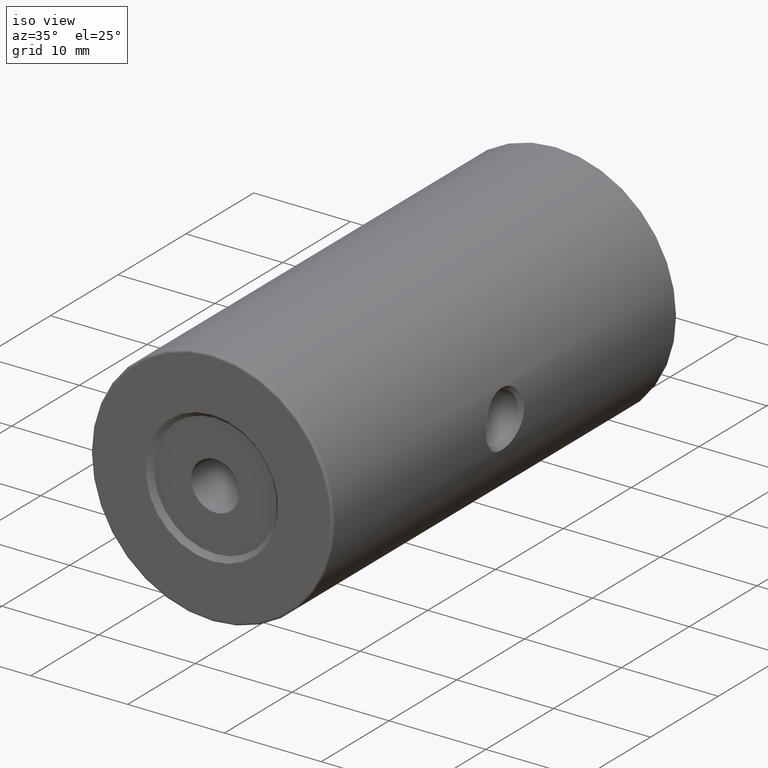
[diagram: clean part render]
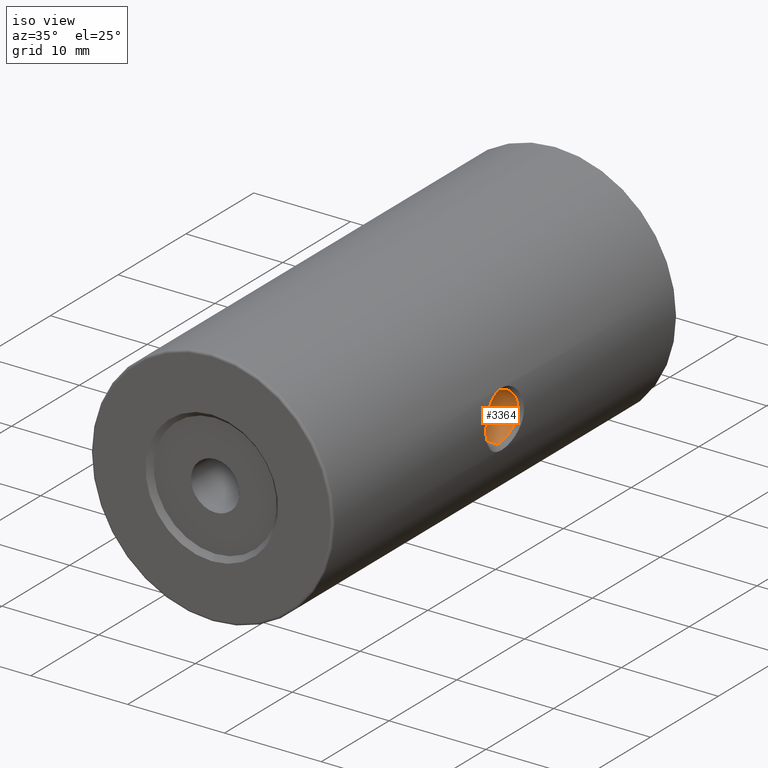
[diagram: same view with one face highlighted and labeled with its STEP entity id]
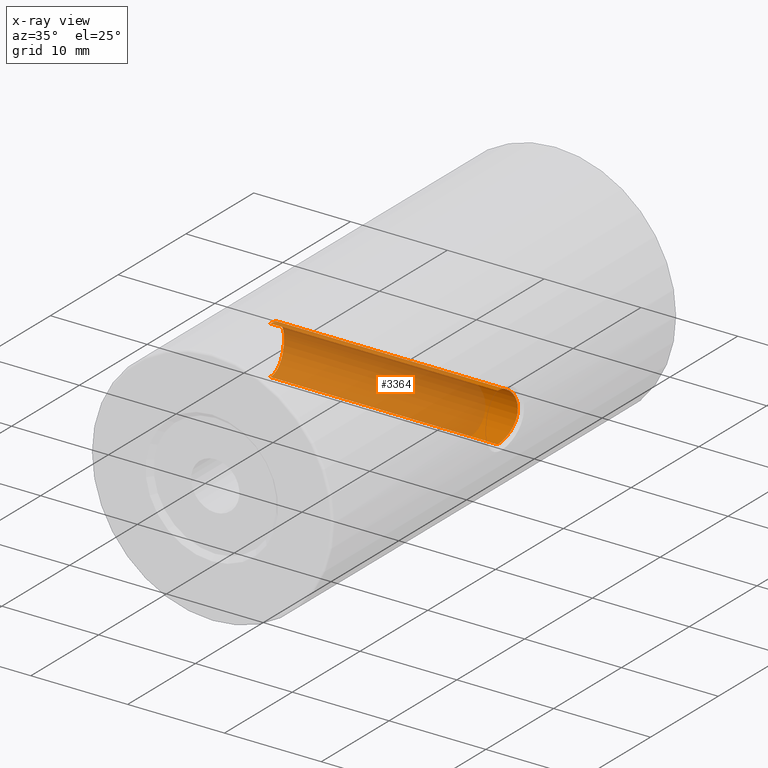
[diagram: x-ray of the same camera — body ghosted, the highlighted face saturated]
A machine part, iso view. The second image highlights one B-rep face of the part: STEP entity #3364.
The next image is the same camera in x-ray: the body ghosted, the highlighted face saturated — about 86% of this face is hidden behind the body in this view.
In plain terms, the highlighted cylindrical surface (edge-blend (fillet) strip) has radius 2.5 mm, axis along (1, -0, -0).
Its self-contained STEP definition (entity closure, byte-faithful):
#1 = CARTESIAN_POINT ( 'NONE',  ( -34.53799626503553100, 3.714705747844400552, 49.05955801840078578 ) ) ;
#10 = CARTESIAN_POINT ( 'NONE',  ( -34.34694435702544268, 2.724696208876177916, 52.11927320865969904 ) ) ;
#13 = CARTESIAN_POINT ( 'NONE',  ( -10.74055264803361887, 1.965160418878937776, 47.56477696204751027 ) ) ;
#27 = CARTESIAN_POINT ( 'NONE',  ( -34.27804580035403603, 2.086575151996424626, 52.40370738585265542 ) ) ;
#30 = CARTESIAN_POINT ( 'NONE',  ( -10.68788471832001719, 2.539433060992520197, 47.77555911953619017 ) ) ;
#45 = CARTESIAN_POINT ( 'NONE',  ( -34.56256781749716822, 3.813732364785566098, 50.64996031648875885 ) ) ;
#48 = CARTESIAN_POINT ( 'NONE',  ( -10.56657809085380784, 3.290784664105088630, 51.63401304753421073 ) ) ;
#57 = ORIENTED_EDGE ( 'NONE', *, *, #2527, .T. ) ;
#66 = CARTESIAN_POINT ( 'NONE',  ( -10.43458761997465523, 3.865409358441089793, 50.40600943151760305 ) ) ;
#70 = CARTESIAN_POINT ( 'NONE',  ( -34.33858617189392959, 2.664240156316155961, 47.84414879115580987 ) ) ;
#80 = CARTESIAN_POINT ( 'NONE',  ( -34.50880725685789230, 3.591694377612402178, 51.19969144280758400 ) ) ;
#85 = CARTESIAN_POINT ( 'NONE',  ( -10.50766408937950658, 3.565365691942252724, 51.24710472444194664 ) ) ;
#103 = CARTESIAN_POINT ( 'NONE',  ( -10.42602248527153641, 3.898315734512936004, 50.07909685301757463 ) ) ;
#106 = CARTESIAN_POINT ( 'NONE',  ( -34.47835700621472199, 3.455955106656807718, 48.57972021482910918 ) ) ;
#114 = CARTESIAN_POINT ( 'NONE',  ( -34.53991951118978676, 3.722633376748722078, 50.92141146752413050 ) ) ;
#120 = CARTESIAN_POINT ( 'NONE',  ( -10.49003806496750713, 3.641181918051476174, 51.10440038296660248 ) ) ;
#125 = CARTESIAN_POINT ( 'NONE',  ( -34.30394296115252217, 2.375711128245953763, 47.69891051549695504 ) ) ;
#161 = CARTESIAN_POINT ( 'NONE',  ( -10.62237732879239260, 2.988748929443698188, 51.92881521574157233 ) ) ;
#179 = VERTEX_POINT ( 'NONE', #855 ) ;
#195 = CARTESIAN_POINT ( 'NONE',  ( -10.65923473107763186, 2.754486190467121620, 52.10060455302398452 ) ) ;
#226 = CARTESIAN_POINT ( 'NONE',  ( -34.35488893522519760, 2.779496485271359951, 52.08380567107194281 ) ) ;
#229 = CARTESIAN_POINT ( 'NONE',  ( -10.53966556759820605, 3.420558592520987151, 48.53006894743834465 ) ) ;
#241 = CARTESIAN_POINT ( 'NONE',  ( -34.47793529354721898, 3.453928640690001384, 51.42277278292520748 ) ) ;
#244 = CARTESIAN_POINT ( 'NONE',  ( -10.56391064301698179, 3.303839945643887166, 48.38172606724518232 ) ) ;
#250 = EDGE_LOOP ( 'NONE', ( #2771, #57, #2067, #2165, #302, #843 ) ) ;
#255 = CARTESIAN_POINT ( 'NONE',  ( -34.34325654698270824, 2.698307815750786265, 52.13547844895588668 ) ) ;
#258 = CARTESIAN_POINT ( 'NONE',  ( -10.62827805860839625, 2.953539933338767742, 48.04262997200446961 ) ) ;
#263 = CARTESIAN_POINT ( 'NONE',  ( -34.54901993731348142, 3.759636630981269878, 49.17730288338822930 ) ) ;
#273 = CARTESIAN_POINT ( 'NONE',  ( -34.32523023667661022, 2.561403185856742759, 52.21301639183822374 ) ) ;
#277 = CARTESIAN_POINT ( 'NONE',  ( -10.74912821629455806, 1.806382460940008539, 47.53221428566036622 ) ) ;
#291 = CARTESIAN_POINT ( 'NONE',  ( -34.39480158165835633, 3.028510403437080445, 51.89576953583296159 ) ) ;
#294 = CARTESIAN_POINT ( 'NONE',  ( -10.69883739644757448, 2.446902964218242271, 47.72992432399926344 ) ) ;
#302 = ORIENTED_EDGE ( 'NONE', *, *, #2511, .T. ) ;
#310 = CARTESIAN_POINT ( 'NONE',  ( -10.46658545540535457, 3.738506329211958690, 50.87957062682780673 ) ) ;
#326 = CARTESIAN_POINT ( 'NONE',  ( -10.61255753572120319, 3.045764872686388181, 51.88045600329560614 ) ) ;
#329 = CARTESIAN_POINT ( 'NONE',  ( -34.26995450285942724, 1.966833508833786492, 47.56517006759014521 ) ) ;
#342 = B_SPLINE_CURVE_WITH_KNOTS ( 'NONE', 3,
 ( #1839, #2959, #2908, #517, #1576, #1310, #2372, #1593, #1048, #1854, #2657, #2110, #263, #1327, #2388, #1, #1063, #2125, #3198, #1867, #2676, #1343, #3287, #1436, #2500, #2802, #929, #913, #106, #3046, #1475, #2540, #653, #3012, #1112, #2194, #3265, #2252, #1167, #2235, #1715, #2176, #2785, #1696, #392, #2766, #3065, #1661, #895, #3303, #3031, #2461, #1456, #1956, #3322, #1991, #637, #673, #3248, #2520, #370, #70, #1734, #1918, #856, #411, #875, #2993, #1131, #125, #1971, #1187, #1938, #620, #601, #2727, #329, #1399, #1680, #2746, #350 ),
 .UNSPECIFIED., .F., .F.,
 ( 4, 2, 2, 2, 2, 2, 1, 2, 2, 1, 2, 2, 2, 1, 2, 2, 2, 1, 1, 2, 2, 2, 2, 2, 2, 2, 1, 1, 2, 2, 2, 1, 2, 2, 2, 2, 2, 1, 2, 2, 2, 2, 2, 2, 4 ),
 ( 0.5000000000000000000, 0.5156264305114712787, 0.5234396457672069181, 0.5312528610229424464, 0.5390660762786780857, 0.5468792915344137251, 0.5546925067901493644, 0.5585991144180171286, 0.5625057220458848928, 0.5703189373016201991, 0.5742255449294879632, 0.5781321525573557274, 0.5859453678130911447, 0.5898519754409589089, 0.5918052792548921248, 0.5937585830688254518, 0.6015717983245586487, 0.6054784059524253026, 0.6074317097663581855, 0.6084083616733246824, 0.6093850135802910684, 0.6171982288360284841, 0.6211048364638973585, 0.6250114440917661218, 0.6328246593475032045, 0.6367312669753713017, 0.6386845707893054058, 0.6396612226962730130, 0.6401495486497568166, 0.6406378746032406202, 0.6484510898589777028, 0.6523576974868462441, 0.6543110013007806813, 0.6562643051147150075, 0.6640775203704545326, 0.6679841279983245173, 0.6718907356261945019, 0.6797039508819345821, 0.6836105585098046777, 0.6875171661376747734, 0.6953303813934147426, 0.7031435966491548228, 0.7109568119048947921, 0.7187700271606347613, 0.7500228881835950823 ),
 .UNSPECIFIED. ) ;
#347 = CARTESIAN_POINT ( 'NONE',  ( -10.49693029463215055, 3.611794956655857369, 51.16215062623718524 ) ) ;
#350 = CARTESIAN_POINT ( 'NONE',  ( -34.25265054498071038, 1.398252184769378959, 47.49999999999539568 ) ) ;
#359 = CARTESIAN_POINT ( 'NONE',  ( -35.00520183104453764, 1.398252184769388728, 52.50000000000000711 ) ) ;
#366 = CARTESIAN_POINT ( 'NONE',  ( -10.48362473781051385, 3.668293309278440884, 51.04873908158454299 ) ) ;
#370 = CARTESIAN_POINT ( 'NONE',  ( -34.34582147389722451, 2.716998224141196072, 47.87571452042210751 ) ) ;
#388 = CARTESIAN_POINT ( 'NONE',  ( -10.58680048196469592, 3.187015570641649642, 51.74674765687397127 ) ) ;
#392 = CARTESIAN_POINT ( 'NONE',  ( -34.39761001984179956, 3.044417718302857345, 48.11836436365982195 ) ) ;
#401 = DIRECTION ( 'NONE',  ( 1.000000000000000000, -0.0000000000000000000, -0.0000000000000000000 ) ) ;
#408 = CARTESIAN_POINT ( 'NONE',  ( -10.65249293293446087, 2.799858131135670281, 52.07017394353964335 ) ) ;
#411 = CARTESIAN_POINT ( 'NONE',  ( -34.32261253376181287, 2.540665696759427217, 47.77588027151615080 ) ) ;
#461 = CARTESIAN_POINT ( 'NONE',  ( -10.75770789460023380, 1.563061693738620583, 52.49983513836786386 ) ) ;
#492 = CARTESIAN_POINT ( 'NONE',  ( -34.43271705916691161, 3.234563489872000375, 51.69693926536846362 ) ) ;
#510 = CARTESIAN_POINT ( 'NONE',  ( -34.46296856650761953, 3.383991984260283470, 51.51937197563789539 ) ) ;
#513 = CARTESIAN_POINT ( 'NONE',  ( -10.56979142705477592, 3.274545867982725067, 48.34774838025769128 ) ) ;
#517 = CARTESIAN_POINT ( 'NONE',  ( -34.58023691177783832, 3.882480711091273129, 49.71662314756471801 ) ) ;
#526 = CARTESIAN_POINT ( 'NONE',  ( -34.38425514538157302, 2.966316391726322887, 51.94710199268654094 ) ) ;
#542 = CARTESIAN_POINT ( 'NONE',  ( -34.45748932519092023, 3.357772379161701348, 51.55315505964590983 ) ) ;
#545 = CARTESIAN_POINT ( 'NONE',  ( -10.57782312020690973, 3.233863439441449383, 48.30230010774853611 ) ) ;
#562 = CARTESIAN_POINT ( 'NONE',  ( -34.38671495544637935, 2.980983265076709188, 51.93519311268136107 ) ) ;
#565 = CARTESIAN_POINT ( 'NONE',  ( -10.63324832098977879, 2.923347842215427761, 48.01886132538812291 ) ) ;
#581 = CARTESIAN_POINT ( 'NONE',  ( -10.71611989040693480, 2.278727290038973674, 47.66008678486235794 ) ) ;
#597 = CARTESIAN_POINT ( 'NONE',  ( -10.55531889801301659, 3.345944087751461016, 51.56733120439854190 ) ) ;
#601 = CARTESIAN_POINT ( 'NONE',  ( -34.27801529104964118, 2.086261137797316145, 47.59617280641642623 ) ) ;
#611 = CARTESIAN_POINT ( 'NONE',  ( -35.00520183104453764, 1.398252184769388506, 47.50000000000000000 ) ) ;
#612 = CARTESIAN_POINT ( 'NONE',  ( -10.75775277531307239, 1.400772240898691123, 52.49999872986310834 ) ) ;
#617 = CARTESIAN_POINT ( 'NONE',  ( -10.62128130365141310, 2.995209600827943408, 51.92347243009047730 ) ) ;
#620 = CARTESIAN_POINT ( 'NONE',  ( -34.28425718425108926, 2.166107220717877979, 47.62047480790241849 ) ) ;
#634 = CARTESIAN_POINT ( 'NONE',  ( -10.44050617184146823, 3.842400022348096300, 50.52702085068084159 ) ) ;
#637 = CARTESIAN_POINT ( 'NONE',  ( -34.36086175259101338, 2.819442343495019099, 47.94322949625630059 ) ) ;
#645 = CARTESIAN_POINT ( 'NONE',  ( -34.58436337322496001, 3.898250868283255066, 50.00256562447481912 ) ) ;
#650 = CARTESIAN_POINT ( 'NONE',  ( -10.47640660499210519, 3.698224077249324893, 49.01991178301089036 ) ) ;
#653 = CARTESIAN_POINT ( 'NONE',  ( -34.45699076149875140, 3.355189985240459638, 48.44417053961399944 ) ) ;
#670 = CARTESIAN_POINT ( 'NONE',  ( -10.75338199212435342, 1.726486270556788272, 52.48392474899447535 ) ) ;
#673 = CARTESIAN_POINT ( 'NONE',  ( -34.35854923057267740, 2.804111315465720011, 47.93272002937037968 ) ) ;
#719 = CARTESIAN_POINT ( 'NONE',  ( -10.71220122382865014, 2.319907301226082463, 52.32428643417196668 ) ) ;
#733 = CARTESIAN_POINT ( 'NONE',  ( -10.62234100687278016, 2.988962205874692746, 51.92863791231235382 ) ) ;
#749 = CARTESIAN_POINT ( 'NONE',  ( -34.33157960056090729, 2.611711056593790214, 52.18608434738720803 ) ) ;
#764 = CARTESIAN_POINT ( 'NONE',  ( -34.30016066776102690, 2.338896842652554042, 52.31637011544891891 ) ) ;
#767 = CARTESIAN_POINT ( 'NONE',  ( -10.54743776130639077, 3.383981544169346822, 48.48060507579832290 ) ) ;
#781 = CARTESIAN_POINT ( 'NONE',  ( -34.50232215744769348, 3.563461913674122794, 51.24990526171338701 ) ) ;
#784 = CARTESIAN_POINT ( 'NONE',  ( -10.66726304063190867, 2.697473259859916261, 47.86401275867633842 ) ) ;
#796 = CARTESIAN_POINT ( 'NONE',  ( -34.36529390645667092, 2.848719826973262759, 52.03661785203726708 ) ) ;
#800 = CARTESIAN_POINT ( 'NONE',  ( -10.58398987589730922, 3.202030749085214456, 48.26819460364748693 ) ) ;
#815 = CARTESIAN_POINT ( 'NONE',  ( -34.31168622883780728, 2.447977223187019824, 52.26958429966916952 ) ) ;
#818 = CARTESIAN_POINT ( 'NONE',  ( -10.66355808636980917, 2.724000046125462760, 47.88028934359981292 ) ) ;
#835 = CARTESIAN_POINT ( 'NONE',  ( -10.73534138326078669, 2.045066429621571036, 47.58477174512798058 ) ) ;
#843 = ORIENTED_EDGE ( 'NONE', *, *, #3131, .T. ) ;
#849 = CARTESIAN_POINT ( 'NONE',  ( -34.51577102830133725, 3.621698728318141214, 51.14371251332659796 ) ) ;
#852 = CARTESIAN_POINT ( 'NONE',  ( -10.59807076732466413, 3.126980561815674076, 51.80684960860677535 ) ) ;
#855 = CARTESIAN_POINT ( 'NONE',  ( -34.25265052839080937, 1.398252184769062545, 52.50000002275201183 ) ) ;
#856 = CARTESIAN_POINT ( 'NONE',  ( -34.32972789658966661, 2.597037757402532065, 47.80606120171989204 ) ) ;
#870 = CARTESIAN_POINT ( 'NONE',  ( -10.44277018626292985, 3.833558039630819536, 50.56652604515083738 ) ) ;
#875 = CARTESIAN_POINT ( 'NONE',  ( -34.31588000980587339, 2.484643514921128116, 47.74774139938863016 ) ) ;
#887 = EDGE_CURVE ( 'NONE', #179, #1632, #1964, .T. ) ;
#892 = CARTESIAN_POINT ( 'NONE',  ( -10.47228985999483264, 3.715187967734361774, 50.93925226526976502 ) ) ;
#895 = CARTESIAN_POINT ( 'NONE',  ( -34.38884296427712428, 2.993564852399764664, 48.07516311288792110 ) ) ;
#905 = CARTESIAN_POINT ( 'NONE',  ( -34.53407786932830703, 3.698557997503573613, 50.97930073135344742 ) ) ;
#910 = CARTESIAN_POINT ( 'NONE',  ( -10.47777082684039129, 3.692608870424224587, 50.99371643831760537 ) ) ;
#912 = EDGE_CURVE ( 'NONE', #2981, #3068, #1910, .T. ) ;
#913 = CARTESIAN_POINT ( 'NONE',  ( -34.48392976939013010, 3.481356259995909141, 48.61769724347142585 ) ) ;
#926 = CARTESIAN_POINT ( 'NONE',  ( -10.46126713321951307, 3.760105976178244269, 50.82135131906538561 ) ) ;
#929 = CARTESIAN_POINT ( 'NONE',  ( -34.48542199940442998, 3.488133907613046869, 48.62795515746079644 ) ) ;
#933 = AXIS2_PLACEMENT_3D ( 'NONE', #3312, #401, #3168 ) ;
#945 = CARTESIAN_POINT ( 'NONE',  ( -10.74262275664329636, 1.930177161233113559, 52.44310909606444682 ) ) ;
#962 = CARTESIAN_POINT ( 'NONE',  ( -10.70046203536048601, 2.431367238257860830, 52.27663631734336747 ) ) ;
#1008 = CARTESIAN_POINT ( 'NONE',  ( -10.65159541338158355, 2.805837286584396573, 52.06610518278511535 ) ) ;
#1024 = CARTESIAN_POINT ( 'NONE',  ( -34.37712870117411512, 2.923183177182456571, 51.98126396665610827 ) ) ;
#1028 = CARTESIAN_POINT ( 'NONE',  ( -10.70476268514651252, 2.392250165626466085, 47.70577093960275761 ) ) ;
#1032 = FACE_OUTER_BOUND ( 'NONE', #250, .T. ) ;
#1041 = CARTESIAN_POINT ( 'NONE',  ( -34.49285213743692680, 3.521659789373804195, 51.32016033927564536 ) ) ;
#1048 = CARTESIAN_POINT ( 'NONE',  ( -34.56758654008904585, 3.833374463698392631, 49.43267290171542783 ) ) ;
#1057 = CARTESIAN_POINT ( 'NONE',  ( -34.26991302517360793, 1.966150412365516242, 52.43498634185590390 ) ) ;
#1060 = CARTESIAN_POINT ( 'NONE',  ( -10.59445844981638807, 3.146199053620454045, 48.21243923078012017 ) ) ;
#1063 = CARTESIAN_POINT ( 'NONE',  ( -34.53249561006187918, 3.692039406713308214, 49.00496577797770215 ) ) ;
#1071 = CARTESIAN_POINT ( 'NONE',  ( -34.38208088999046197, 2.953269912498012850, 51.95758413938997933 ) ) ;
#1074 = CARTESIAN_POINT ( 'NONE',  ( -10.62388814465178299, 2.979798253938940267, 48.06383882973941013 ) ) ;
#1089 = CARTESIAN_POINT ( 'NONE',  ( -34.28401376549511070, 2.163067110284655925, 52.38047386747341960 ) ) ;
#1093 = CARTESIAN_POINT ( 'NONE',  ( -10.65969737157873887, 2.750831973513066409, 47.89746761160433408 ) ) ;
#1109 = CARTESIAN_POINT ( 'NONE',  ( -10.57756216025037332, 3.235068673070344403, 51.69607022926035000 ) ) ;
#1112 = CARTESIAN_POINT ( 'NONE',  ( -34.45342034665502240, 3.337851177784902923, 48.42266475108254298 ) ) ;
#1128 = CARTESIAN_POINT ( 'NONE',  ( -10.61497147234012672, 3.031921984396706016, 51.89245589269316383 ) ) ;
#1131 = CARTESIAN_POINT ( 'NONE',  ( -34.30574384668300070, 2.392730145329323932, 47.70622247540590166 ) ) ;
#1141 = CARTESIAN_POINT ( 'NONE',  ( -34.54356796060021395, 3.737516586821014286, 50.88289497874463052 ) ) ;
#1146 = CARTESIAN_POINT ( 'NONE',  ( -10.62192216117861143, 2.991433434158930371, 51.92659701926661597 ) ) ;
#1158 = CARTESIAN_POINT ( 'NONE',  ( -34.55037290242658088, 3.765055916444608908, 50.80616473622126250 ) ) ;
#1164 = CARTESIAN_POINT ( 'NONE',  ( -10.43146499598197430, 3.877481800841713788, 50.32423554535376553 ) ) ;
#1167 = CARTESIAN_POINT ( 'NONE',  ( -34.43552205052251480, 3.248773439488270576, 48.31893139376359869 ) ) ;
#1172 = B_SPLINE_CURVE_WITH_KNOTS ( 'NONE', 3,
 ( #3424, #3440, #2654, #2139, #277, #1357, #13, #835, #2385, #2419, #1573, #581, #2107, #2689, #1028, #294, #2091, #30, #2622, #2402, #2905, #784, #818, #1093, #1851, #2369, #3181, #2921, #1339, #565, #258, #1864, #2122, #1074, #2158, #3195, #3164, #1324, #2936, #3456, #1060, #800, #545, #513, #2638, #244, #1624, #3229, #1899, #2973, #1607, #767, #229, #1292, #2672, #3211, #1307, #1882, #2354, #2955, #1836, #1914, #3285, #2742, #1451, #1693, #3010, #650, #3301, #1182, #3245, #1954, #3318, #2515, #1433, #3028, #103, #1986, #3062, #1164, #66, #2763, #634, #870, #1640, #2210, #2705, #926, #310, #2231, #892, #910, #366, #120, #2173, #347, #2494, #85, #2989, #1969, #2475, #2191, #1413, #3044, #1710, #3262, #2782, #1675, #597, #2248, #2439, #1374, #48, #1394, #1109, #1657, #388, #852, #2722, #326, #1128, #2456, #1932, #617, #1146, #733, #161, #1765, #2571, #1522, #2040, #2816, #1008, #408, #195, #2867, #2073, #3108, #3126, #3338, #2005, #2587, #962, #3405, #1471, #719, #2852, #1538, #1238, #1784, #2536, #2602, #945, #670, #461, #1253 ),
 .UNSPECIFIED., .F., .F.,
 ( 4, 2, 2, 2, 2, 1, 2, 2, 1, 2, 2, 2, 1, 2, 2, 2, 1, 1, 1, 2, 2, 2, 2, 2, 2, 2, 1, 2, 2, 2, 1, 2, 2, 2, 2, 2, 1, 2, 2, 2, 2, 2, 2, 2, 2, 2, 2, 2, 1, 2, 2, 1, 2, 2, 2, 1, 2, 2, 2, 1, 1, 2, 2, 2, 2, 2, 2, 2, 1, 1, 2, 2, 2, 1, 2, 2, 2, 2, 2, 1, 2, 2, 2, 2, 2, 2, 4 ),
 ( 0.0000000000000000000, 0.01562499999998245501, 0.03124999999996491001, 0.03906249999995613925, 0.04687499999994736155, 0.05468749999993859079, 0.05859374999993396949, 0.06249999999992934818, 0.07031249999992010558, 0.07421874999991547039, 0.07812499999991083521, 0.08593749999990221711, 0.08984374999989788724, 0.09179687499989604149, 0.09374999999989419575, 0.1015624999998877287, 0.1054687499998848699, 0.1074218749998834266, 0.1083984374998831074, 0.1088867187498829686, 0.1093749999998828160, 0.1171874999998934463, 0.1210937499998987615, 0.1249999999999040767, 0.1328124999999139855, 0.1367187499999189537, 0.1386718749999213685, 0.1396484374999218958, 0.1406249999999224509, 0.1484374999999267253, 0.1523437499999288347, 0.1542968749999299172, 0.1562499999999309996, 0.1640624999999363287, 0.1679687499999390210, 0.1718749999999417133, 0.1796874999999471256, 0.1835937499999504285, 0.1874999999999537037, 0.1953124999999591715, 0.2031249999999646394, 0.2187499999999743261, 0.2499999999999936717, 0.2656250000000033307, 0.2734375000000074940, 0.2812500000000116573, 0.2890625000000158207, 0.2968750000000199840, 0.3046875000000241474, 0.3085937500000262013, 0.3125000000000282552, 0.3203125000000311418, 0.3242187500000319744, 0.3281250000000328071, 0.3359375000000356937, 0.3398437500000365263, 0.3417968750000364153, 0.3437500000000363598, 0.3515625000000360267, 0.3554687500000353606, 0.3574218750000349720, 0.3583984375000347500, 0.3593750000000345834, 0.3671875000000300870, 0.3710937500000278666, 0.3750000000000255906, 0.3828125000000205946, 0.3867187500000180411, 0.3886718750000168199, 0.3896484375000162093, 0.3901367187500159872, 0.3906250000000157652, 0.3984375000000154321, 0.4023437500000153211, 0.4042968750000153211, 0.4062500000000152656, 0.4140625000000136002, 0.4179687500000131006, 0.4218750000000126010, 0.4296875000000116573, 0.4335937500000112133, 0.4375000000000107692, 0.4453125000000094369, 0.4531250000000081046, 0.4609375000000067724, 0.4687500000000054401, 0.5000000000000000000 ),
 .UNSPECIFIED. ) ;
#1182 = CARTESIAN_POINT ( 'NONE',  ( -10.46683874819188276, 3.737504584614672165, 49.11705898947067084 ) ) ;
#1187 = CARTESIAN_POINT ( 'NONE',  ( -34.29425908866706862, 2.279086920308458719, 47.65995889923475914 ) ) ;
#1238 = CARTESIAN_POINT ( 'NONE',  ( -10.72594683895940548, 2.168530309151548874, 52.37874403322788197 ) ) ;
#1252 = B_SPLINE_CURVE_WITH_KNOTS ( 'NONE', 3,
 ( #612, #2452, #2893, #2017, #2359 ),
 .UNSPECIFIED., .F., .F.,
 ( 4, 1, 4 ),
 ( 0.5000000000000000000, 0.5000808699275857139, 0.5001617398551714277 ),
 .UNSPECIFIED. ) ;
#1253 = CARTESIAN_POINT ( 'NONE',  ( -10.75775277531307239, 1.400772240898691123, 52.49999872986310834 ) ) ;
#1289 = CARTESIAN_POINT ( 'NONE',  ( -34.25694026224092426, 1.683161598307294948, 52.48405114420977924 ) ) ;
#1292 = CARTESIAN_POINT ( 'NONE',  ( -10.53590965403381219, 3.438070091909231962, 48.55438621986129277 ) ) ;
#1304 = CARTESIAN_POINT ( 'NONE',  ( -34.48024853828947300, 3.464553031652027659, 51.40729843794096610 ) ) ;
#1307 = CARTESIAN_POINT ( 'NONE',  ( -10.52907118884337123, 3.469515327561039975, 48.60000513657042376 ) ) ;
#1310 = CARTESIAN_POINT ( 'NONE',  ( -34.57580320139236818, 3.865360020683432207, 49.59368190424329015 ) ) ;
#1319 = CARTESIAN_POINT ( 'NONE',  ( -34.35078610549837919, 2.751384864681059028, 52.10217632155313794 ) ) ;
#1324 = CARTESIAN_POINT ( 'NONE',  ( -10.60750994316150297, 3.074333090331624607, 48.14496214669854623 ) ) ;
#1327 = CARTESIAN_POINT ( 'NONE',  ( -34.54369817821186217, 3.738018949567919247, 49.11913398801507924 ) ) ;
#1335 = CARTESIAN_POINT ( 'NONE',  ( -34.25264969898167067, 1.479168740011100214, 52.50000000000001421 ) ) ;
#1339 = CARTESIAN_POINT ( 'NONE',  ( -10.63729871190613885, 2.898126532838807279, 47.99980086166073079 ) ) ;
#1343 = CARTESIAN_POINT ( 'NONE',  ( -34.50695619508598355, 3.583718661796758909, 48.78542191975093800 ) ) ;
#1354 = CARTESIAN_POINT ( 'NONE',  ( -34.26149993960419238, 1.805777567663617855, 52.46690698300361078 ) ) ;
#1357 = CARTESIAN_POINT ( 'NONE',  ( -10.74289442880792933, 1.925329444754339647, 47.55585930733043654 ) ) ;
#1371 = CARTESIAN_POINT ( 'NONE',  ( -34.55337786558744284, 3.777108215742401853, 50.76993000472031525 ) ) ;
#1374 = CARTESIAN_POINT ( 'NONE',  ( -10.56199101250251715, 3.313389350789485821, 51.60720248135837807 ) ) ;
#1394 = CARTESIAN_POINT ( 'NONE',  ( -10.57466531684339728, 3.249874824955048869, 51.67985506951195163 ) ) ;
#1399 = CARTESIAN_POINT ( 'NONE',  ( -34.26768233899846905, 1.928450702705048370, 47.55651474074507234 ) ) ;
#1413 = CARTESIAN_POINT ( 'NONE',  ( -10.52620299369526258, 3.482587794025575612, 51.38044518720528231 ) ) ;
#1433 = CARTESIAN_POINT ( 'NONE',  ( -10.43026627198259781, 3.882253059674794837, 49.67256777598775130 ) ) ;
#1436 = CARTESIAN_POINT ( 'NONE',  ( -34.49541331745723483, 3.532988666247074860, 48.69872623418265789 ) ) ;
#1451 = CARTESIAN_POINT ( 'NONE',  ( -10.48808776788148656, 3.649523439089907839, 48.91157680471115299 ) ) ;
#1456 = CARTESIAN_POINT ( 'NONE',  ( -34.38144323524218038, 2.949763338984734418, 48.03916816231713938 ) ) ;
#1471 = CARTESIAN_POINT ( 'NONE',  ( -10.70622746959254279, 2.377934762995611351, 52.30014367841698686 ) ) ;
#1475 = CARTESIAN_POINT ( 'NONE',  ( -34.46584608861534349, 3.397542947976256666, 48.49891677664061262 ) ) ;
#1506 = VERTEX_POINT ( 'NONE', #1924 ) ;
#1522 = CARTESIAN_POINT ( 'NONE',  ( -10.64199037483496113, 2.868482314852760950, 52.02208733020420084 ) ) ;
#1538 = CARTESIAN_POINT ( 'NONE',  ( -10.72288709385871996, 2.204594157728508641, 52.36674351380725767 ) ) ;
#1555 = CARTESIAN_POINT ( 'NONE',  ( -34.44318529400404572, 3.287420730537559788, 51.63748006458875750 ) ) ;
#1570 = CARTESIAN_POINT ( 'NONE',  ( -34.29431945050663444, 2.279110160737296553, 52.33977014953804741 ) ) ;
#1573 = CARTESIAN_POINT ( 'NONE',  ( -10.72153079176774959, 2.220792733292273002, 47.63856652003764935 ) ) ;
#1576 = CARTESIAN_POINT ( 'NONE',  ( -34.57893418754942871, 3.877465556899411858, 49.67562903271175401 ) ) ;
#1586 = CARTESIAN_POINT ( 'NONE',  ( -34.37309152292513659, 2.898042292598248526, 52.00026168201515731 ) ) ;
#1593 = CARTESIAN_POINT ( 'NONE',  ( -34.56986290510831594, 3.842265132169373487, 49.47234130247947803 ) ) ;
#1601 = CARTESIAN_POINT ( 'NONE',  ( -34.27508428324640022, 2.045357825997301759, 52.41514413048635390 ) ) ;
#1607 = CARTESIAN_POINT ( 'NONE',  ( -10.55296637921768976, 3.357524876382418810, 48.44652055320329254 ) ) ;
#1621 = CARTESIAN_POINT ( 'NONE',  ( -34.35338147968705158, 2.769239204486454220, 52.09057597998993572 ) ) ;
#1624 = CARTESIAN_POINT ( 'NONE',  ( -10.56228348234877856, 3.311881166526372322, 48.39123262895487443 ) ) ;
#1632 = VERTEX_POINT ( 'NONE', #3090 ) ;
#1640 = CARTESIAN_POINT ( 'NONE',  ( -10.44780453270753284, 3.813763724021211221, 50.64573242933733610 ) ) ;
#1657 = CARTESIAN_POINT ( 'NONE',  ( -10.58375804988519953, 3.202955632813256681, 51.73020071058130043 ) ) ;
#1661 = CARTESIAN_POINT ( 'NONE',  ( -34.39043951122707199, 3.002945015364635761, 48.08295802081725867 ) ) ;
#1675 = CARTESIAN_POINT ( 'NONE',  ( -10.55317987587206296, 3.356315340151343918, 51.55441317482761576 ) ) ;
#1680 = CARTESIAN_POINT ( 'NONE',  ( -34.25694543538440939, 1.724468045659705684, 47.51579507649224610 ) ) ;
#1689 = CARTESIAN_POINT ( 'NONE',  ( -34.53230527916870329, 3.691218907221982093, 50.99634521866104819 ) ) ;
#1693 = CARTESIAN_POINT ( 'NONE',  ( -10.48205551589994577, 3.674751804889546669, 48.96658403329121967 ) ) ;
#1696 = CARTESIAN_POINT ( 'NONE',  ( -34.40566408743829641, 3.090010173538130012, 48.15891080216286468 ) ) ;
#1710 = CARTESIAN_POINT ( 'NONE',  ( -10.53658929590089421, 3.435006155478295131, 51.45027489262303533 ) ) ;
#1715 = CARTESIAN_POINT ( 'NONE',  ( -34.42640494977918308, 3.201698727274083556, 48.26848832650870946 ) ) ;
#1718 = VECTOR ( 'NONE', #1948, 1000.000000000000000 ) ;
#1734 = CARTESIAN_POINT ( 'NONE',  ( -34.33624370790851543, 2.646806171045467337, 47.83401143121069055 ) ) ;
#1765 = CARTESIAN_POINT ( 'NONE',  ( -10.62866622019873475, 2.951544250995002283, 51.95942332555375032 ) ) ;
#1775 = VECTOR ( 'NONE', #3002, 1000.000000000000000 ) ;
#1784 = CARTESIAN_POINT ( 'NONE',  ( -10.73222477241632511, 2.088477423518467546, 52.40319385075625291 ) ) ;
#1816 = CARTESIAN_POINT ( 'NONE',  ( -34.40292642921738775, 3.074516548258740656, 51.85487433046746020 ) ) ;
#1833 = CARTESIAN_POINT ( 'NONE',  ( -34.30573236674659654, 2.393111125783168092, 52.29385858850991298 ) ) ;
#1836 = CARTESIAN_POINT ( 'NONE',  ( -10.50806148967661358, 3.563549575315525519, 48.75024839436874657 ) ) ;
#1839 = CARTESIAN_POINT ( 'NONE',  ( -34.58436337322496001, 3.898250868283255066, 50.00256562447481912 ) ) ;
#1848 = CARTESIAN_POINT ( 'NONE',  ( -34.36046448218377236, 2.817120072495870264, 52.05867049246618450 ) ) ;
#1851 = CARTESIAN_POINT ( 'NONE',  ( -10.65708894826713404, 2.768782829188122907, 47.90912451784429038 ) ) ;
#1854 = CARTESIAN_POINT ( 'NONE',  ( -34.56252324084479000, 3.813464430357043522, 49.35313806840424888 ) ) ;
#1861 = CARTESIAN_POINT ( 'NONE',  ( -34.45094144038518635, 3.325738783184532199, 51.59211394682439789 ) ) ;
#1864 = CARTESIAN_POINT ( 'NONE',  ( -10.62573172583964443, 2.968816210442351444, 48.05490762729003507 ) ) ;
#1867 = CARTESIAN_POINT ( 'NONE',  ( -34.51575700200050534, 3.621574355365511977, 48.85663851796233104 ) ) ;
#1878 = CARTESIAN_POINT ( 'NONE',  ( -34.38571617981018846, 2.975046749039664817, 51.94003877001235026 ) ) ;
#1882 = CARTESIAN_POINT ( 'NONE',  ( -10.52248213330368465, 3.499559375148185492, 48.64487119404684989 ) ) ;
#1896 = CARTESIAN_POINT ( 'NONE',  ( -34.52840305807859522, 3.674981101398176353, 51.03291123781769301 ) ) ;
#1899 = CARTESIAN_POINT ( 'NONE',  ( -10.55978731338635335, 3.324144027143437707, 48.40596271069683354 ) ) ;
#1910 = LINE ( 'NONE', #611, #1718 ) ;
#1914 = CARTESIAN_POINT ( 'NONE',  ( -10.50358629648381914, 3.583068483742239962, 48.78469361680836869 ) ) ;
#1918 = CARTESIAN_POINT ( 'NONE',  ( -34.33169738663571735, 2.612276421333474818, 47.81447061566154133 ) ) ;
#1924 = CARTESIAN_POINT ( 'NONE',  ( -34.58436337322496001, 3.898250868283255066, 50.00256562447481912 ) ) ;
#1932 = CARTESIAN_POINT ( 'NONE',  ( -10.61969784651965298, 3.004503414530076189, 51.91573604598304570 ) ) ;
#1938 = CARTESIAN_POINT ( 'NONE',  ( -34.28731963629584101, 2.202316232205207225, 47.63248163846107275 ) ) ;
#1948 = DIRECTION ( 'NONE',  ( 1.000000000000000000, -0.0000000000000000000, -0.0000000000000000000 ) ) ;
#1954 = CARTESIAN_POINT ( 'NONE',  ( -10.45693435473135224, 3.777473808923755172, 49.23120360238201698 ) ) ;
#1956 = CARTESIAN_POINT ( 'NONE',  ( -34.37590333120354558, 2.915794773451762190, 48.01286234897983718 ) ) ;
#1964 = LINE ( 'NONE', #359, #1775 ) ;
#1965 = CARTESIAN_POINT ( 'NONE',  ( -10.75775277531307239, 1.400772240898691123, 52.49999872986310834 ) ) ;
#1969 = CARTESIAN_POINT ( 'NONE',  ( -10.51837359180876952, 3.517933571144506555, 51.32579008385185659 ) ) ;
#1971 = CARTESIAN_POINT ( 'NONE',  ( -34.29798120410801232, 2.317666568573033992, 47.67482637243023191 ) ) ;
#1986 = CARTESIAN_POINT ( 'NONE',  ( -10.42705158325482451, 3.894432946984281330, 50.16070950309094201 ) ) ;
#1991 = CARTESIAN_POINT ( 'NONE',  ( -34.36439915011865054, 2.842708138849463495, 47.95936680337921132 ) ) ;
#2005 = CARTESIAN_POINT ( 'NONE',  ( -10.68758540392581047, 2.542342441976908951, 52.22325597180796564 ) ) ;
#2017 = CARTESIAN_POINT ( 'NONE',  ( -10.75775312484076451, 1.398672224646475559, 52.50000000000002132 ) ) ;
#2040 = CARTESIAN_POINT ( 'NONE',  ( -10.64573901249758947, 2.844430916668585496, 52.03941283699972331 ) ) ;
#2067 = ORIENTED_EDGE ( 'NONE', *, *, #2115, .T. ) ;
#2073 = CARTESIAN_POINT ( 'NONE',  ( -10.67160018275315636, 2.665846511305193012, 52.15490737904912066 ) ) ;
#2088 = CARTESIAN_POINT ( 'NONE',  ( -34.41613788109737015, 3.147235597115267680, 51.78654533551758732 ) ) ;
#2091 = CARTESIAN_POINT ( 'NONE',  ( -10.69234182700370006, 2.502332762322691639, 47.75691348780177492 ) ) ;
#2107 = CARTESIAN_POINT ( 'NONE',  ( -10.71238521261718013, 2.317432552051208905, 47.67501877044592362 ) ) ;
#2110 = CARTESIAN_POINT ( 'NONE',  ( -34.55377552792148776, 3.778695768193336857, 49.23508877299094877 ) ) ;
#2115 = EDGE_CURVE ( 'NONE', #1506, #2981, #342, .T. ) ;
#2120 = CARTESIAN_POINT ( 'NONE',  ( -34.31821333558747256, 2.503614424488722623, 52.24245597253286633 ) ) ;
#2122 = CARTESIAN_POINT ( 'NONE',  ( -10.62462732574344138, 2.975400541801093368, 48.06025488632067777 ) ) ;
#2125 = CARTESIAN_POINT ( 'NONE',  ( -34.52661855603397356, 3.667621899515267625, 48.94979994717805027 ) ) ;
#2135 = CARTESIAN_POINT ( 'NONE',  ( -34.25265052839080937, 1.398252184769062545, 52.50000002275201183 ) ) ;
#2139 = CARTESIAN_POINT ( 'NONE',  ( -10.75242780081259752, 1.722847840886586823, 47.51981399015355834 ) ) ;
#2154 = CARTESIAN_POINT ( 'NONE',  ( -34.56756822307149690, 3.833332788819902692, 50.57206592070092199 ) ) ;
#2158 = CARTESIAN_POINT ( 'NONE',  ( -10.62334915145951975, 2.982996198437783075, 48.06645691304564849 ) ) ;
#2165 = ORIENTED_EDGE ( 'NONE', *, *, #912, .T. ) ;
#2170 = CARTESIAN_POINT ( 'NONE',  ( -34.25265054498071038, 1.398252184769378959, 47.49999999999539568 ) ) ;
#2173 = CARTESIAN_POINT ( 'NONE',  ( -10.49443793111368883, 3.622465759713209277, 51.14162514310664420 ) ) ;
#2176 = CARTESIAN_POINT ( 'NONE',  ( -34.42332169522035201, 3.185531405758055268, 48.25173542516026970 ) ) ;
#2191 = CARTESIAN_POINT ( 'NONE',  ( -10.52471369896612785, 3.489348258755487375, 51.37019330986833410 ) ) ;
#2194 = CARTESIAN_POINT ( 'NONE',  ( -34.45244905414031678, 3.333112005385973298, 48.41686050232481620 ) ) ;
#2204 = CARTESIAN_POINT ( 'NONE',  ( -34.58011478712226250, 3.882168967637813495, 50.32812387780555241 ) ) ;
#2210 = CARTESIAN_POINT ( 'NONE',  ( -10.45068180355963783, 3.802385365944294104, 50.68683908687175688 ) ) ;
#2231 = CARTESIAN_POINT ( 'NONE',  ( -10.47025680275502424, 3.723524227971414913, 50.91844644550563714 ) ) ;
#2235 = CARTESIAN_POINT ( 'NONE',  ( -34.43261872431270376, 3.233925465667585986, 48.30269162704438202 ) ) ;
#2248 = CARTESIAN_POINT ( 'NONE',  ( -10.55675560199042629, 3.338960214666606419, 51.57597055680486164 ) ) ;
#2252 = CARTESIAN_POINT ( 'NONE',  ( -34.44362134598105740, 3.289767285727575263, 48.36480798833689931 ) ) ;
#2351 = CARTESIAN_POINT ( 'NONE',  ( -34.45068667023826947, 3.324488735351635693, 51.59362069245308646 ) ) ;
#2354 = CARTESIAN_POINT ( 'NONE',  ( -10.51747623928491748, 3.521995248718151839, 48.68038661749253748 ) ) ;
#2359 = CARTESIAN_POINT ( 'NONE',  ( -10.75775312123383642, 1.398252184769397388, 52.49999999860907707 ) ) ;
#2366 = CARTESIAN_POINT ( 'NONE',  ( -34.48118596962942917, 3.468845656451787551, 51.40098560065878530 ) ) ;
#2369 = CARTESIAN_POINT ( 'NONE',  ( -10.65554558621580661, 2.779286966446924190, 47.91605539503107991 ) ) ;
#2372 = CARTESIAN_POINT ( 'NONE',  ( -34.57390506594118307, 3.857997678078226578, 49.55136306853461292 ) ) ;
#2382 = CARTESIAN_POINT ( 'NONE',  ( -34.41236803619815987, 3.126786760425250389, 51.80631262430753026 ) ) ;
#2385 = CARTESIAN_POINT ( 'NONE',  ( -10.73230878014616607, 2.087230713268846571, 47.59648392039435549 ) ) ;
#2388 = CARTESIAN_POINT ( 'NONE',  ( -34.54002452358994901, 3.723024222460554089, 49.08028894891097593 ) ) ;
#2398 = CARTESIAN_POINT ( 'NONE',  ( -34.33608617813743535, 2.645985465630225075, 52.16675172971837071 ) ) ;
#2402 = CARTESIAN_POINT ( 'NONE',  ( -10.67898984605627000, 2.610437434572690396, 47.81320628337034151 ) ) ;
#2415 = CARTESIAN_POINT ( 'NONE',  ( -34.42657149361186697, 3.202853141354400357, 51.73094316416666061 ) ) ;
#2419 = CARTESIAN_POINT ( 'NONE',  ( -10.72636834715714294, 2.163316367278696362, 47.61960974747889708 ) ) ;
#2439 = CARTESIAN_POINT ( 'NONE',  ( -10.55773550570429364, 3.334181606824377475, 51.58183139332110301 ) ) ;
#2452 = CARTESIAN_POINT ( 'NONE',  ( -10.75775289145707347, 1.400352262137120052, 52.49999915321134125 ) ) ;
#2456 = CARTESIAN_POINT ( 'NONE',  ( -10.61818952971819563, 3.013288210498428654, 51.90833047861168126 ) ) ;
#2461 = CARTESIAN_POINT ( 'NONE',  ( -34.38771819878407143, 2.986927456131036163, 48.06968425288508229 ) ) ;
#2475 = CARTESIAN_POINT ( 'NONE',  ( -10.52215786200588887, 3.500899096592212434, 51.35240099868715191 ) ) ;
#2494 = CARTESIAN_POINT ( 'NONE',  ( -10.50321221870220079, 3.584739730790785117, 51.21273860960647539 ) ) ;
#2500 = CARTESIAN_POINT ( 'NONE',  ( -34.49177194385730161, 3.516779192418613587, 48.67236566844327683 ) ) ;
#2509 = CARTESIAN_POINT ( 'NONE',  ( -34.52236465314204139, 3.649729440711836137, 51.08800073522198204 ) ) ;
#2511 = EDGE_CURVE ( 'NONE', #3068, #2580, #1172, .T. ) ;
#2515 = CARTESIAN_POINT ( 'NONE',  ( -10.44278610239487648, 3.833526773281907385, 49.42876823398179198 ) ) ;
#2520 = CARTESIAN_POINT ( 'NONE',  ( -34.35092222196222167, 2.752779821162706586, 47.89829672656583170 ) ) ;
#2527 = EDGE_CURVE ( 'NONE', #179, #1506, #2892, .T. ) ;
#2536 = CARTESIAN_POINT ( 'NONE',  ( -10.73510165561819463, 2.048499619657598192, 52.41430491309149176 ) ) ;
#2540 = CARTESIAN_POINT ( 'NONE',  ( -34.46186240356232133, 3.378645102124779420, 48.47394285503791167 ) ) ;
#2571 = CARTESIAN_POINT ( 'NONE',  ( -10.63421686758943885, 2.917547560799804707, 51.98579877779243930 ) ) ;
#2580 = VERTEX_POINT ( 'NONE', #1965 ) ;
#2587 = CARTESIAN_POINT ( 'NONE',  ( -10.69431024340511804, 2.486468489921129343, 52.25137420493697249 ) ) ;
#2602 = CARTESIAN_POINT ( 'NONE',  ( -10.74033125496873886, 1.968770041060153408, 52.43437863028943724 ) ) ;
#2620 = CARTESIAN_POINT ( 'NONE',  ( -34.44820020496916868, 3.312275495771130007, 51.60829794776428514 ) ) ;
#2622 = CARTESIAN_POINT ( 'NONE',  ( -10.68536135105389739, 2.559892940764833646, 47.78618977467733941 ) ) ;
#2634 = CARTESIAN_POINT ( 'NONE',  ( -34.47067577738334876, 3.420266628268183062, 51.47033024460196771 ) ) ;
#2638 = CARTESIAN_POINT ( 'NONE',  ( -10.56731726940130400, 3.286927316641272245, 48.36195018709371851 ) ) ;
#2651 = CARTESIAN_POINT ( 'NONE',  ( -34.39043842415643581, 3.003052469193262741, 51.91709666612811702 ) ) ;
#2654 = CARTESIAN_POINT ( 'NONE',  ( -10.75668805386543347, 1.560100067682693714, 47.50390500056495569 ) ) ;
#2657 = CARTESIAN_POINT ( 'NONE',  ( -34.55961305451552334, 3.801953961258906389, 49.31165516725273790 ) ) ;
#2669 = CARTESIAN_POINT ( 'NONE',  ( -34.28887652143659892, 2.220855473628316812, 52.36141853907847121 ) ) ;
#2672 = CARTESIAN_POINT ( 'NONE',  ( -10.53234901540394475, 3.454478066915511292, 48.57802089523061539 ) ) ;
#2676 = CARTESIAN_POINT ( 'NONE',  ( -34.51324721833411502, 3.610824642208629864, 48.83600299425245339 ) ) ;
#2686 = CARTESIAN_POINT ( 'NONE',  ( -34.25372203042341113, 1.560659625647755178, 52.49606844197764843 ) ) ;
#2689 = CARTESIAN_POINT ( 'NONE',  ( -10.71030778668217209, 2.338251845969222309, 47.68336874345008169 ) ) ;
#2705 = CARTESIAN_POINT ( 'NONE',  ( -10.45651490754966773, 3.779148862535143039, 50.76350199337328206 ) ) ;
#2722 = CARTESIAN_POINT ( 'NONE',  ( -10.60451003076378917, 3.091284809329801764, 51.83991627007478087 ) ) ;
#2727 = CARTESIAN_POINT ( 'NONE',  ( -34.27515475477130025, 2.046380977584421501, 47.58512721043985749 ) ) ;
#2742 = CARTESIAN_POINT ( 'NONE',  ( -10.49467356482357339, 3.621523676002237124, 48.85594951957840948 ) ) ;
#2746 = CARTESIAN_POINT ( 'NONE',  ( -34.25265066272564241, 1.560402683586458394, 47.50000000000000711 ) ) ;
#2763 = CARTESIAN_POINT ( 'NONE',  ( -10.43648446060023716, 3.858052394336442870, 50.44832193567445700 ) ) ;
#2766 = CARTESIAN_POINT ( 'NONE',  ( -34.39518996575469600, 3.030528575511204359, 48.10634144076030339 ) ) ;
#2771 = ORIENTED_EDGE ( 'NONE', *, *, #887, .F. ) ;
#2782 = CARTESIAN_POINT ( 'NONE',  ( -10.54830106098588338, 3.379792021289607540, 51.52456859422592572 ) ) ;
#2785 = CARTESIAN_POINT ( 'NONE',  ( -34.41209200628295406, 3.125665187525341171, 48.19189920978420361 ) ) ;
#2802 = CARTESIAN_POINT ( 'NONE',  ( -34.48798181166461774, 3.499709095036621864, 48.64575056961265176 ) ) ;
#2816 = CARTESIAN_POINT ( 'NONE',  ( -10.64928047622001905, 2.821165976708219780, 52.05557845529997962 ) ) ;
#2852 = CARTESIAN_POINT ( 'NONE',  ( -10.71593139896429392, 2.281339582641605190, 52.33919192996718550 ) ) ;
#2867 = CARTESIAN_POINT ( 'NONE',  ( -10.66434863343947015, 2.718656590239489024, 52.12325621671042342 ) ) ;
#2883 = CARTESIAN_POINT ( 'NONE',  ( -34.44072014331751319, 3.275087769804885252, 51.65163516148201950 ) ) ;
#2892 = B_SPLINE_CURVE_WITH_KNOTS ( 'NONE', 3,
 ( #2135, #1335, #2686, #1289, #3453, #1354, #2953, #2933, #1057, #1601, #27, #1089, #2669, #1570, #3145, #764, #1833, #815, #2120, #3192, #273, #749, #2398, #255, #10, #1319, #1621, #226, #1848, #796, #1586, #1024, #1071, #526, #1878, #562, #2651, #291, #1816, #3207, #2382, #2088, #2415, #492, #2883, #1555, #2902, #2620, #3161, #2351, #1861, #542, #510, #2634, #3421, #241, #1304, #2366, #3437, #1041, #3178, #781, #2918, #80, #849, #2509, #1896, #1689, #905, #114, #1141, #1158, #1371, #45, #2154, #2204, #2970, #645 ),
 .UNSPECIFIED., .F., .F.,
 ( 4, 2, 2, 2, 2, 2, 1, 2, 2, 1, 2, 2, 2, 1, 2, 2, 2, 1, 1, 2, 2, 2, 2, 2, 2, 2, 1, 2, 2, 2, 1, 2, 2, 2, 2, 2, 1, 2, 2, 2, 2, 2, 4 ),
 ( 0.2501157360126265994, 0.2657335025118516825, 0.2735423857614641130, 0.2813512690110765435, 0.2891601522606889740, 0.2969690355103014601, 0.3047779187599138906, 0.3086823603847199116, 0.3125868020095258770, 0.3203956852591381965, 0.3243001268839441065, 0.3282045685087499609, 0.3360134517583618363, 0.3399178933831673577, 0.3418701141955702294, 0.3438223350079730456, 0.3516312182575864198, 0.3555356598823926628, 0.3574878806947957566, 0.3584639911009973035, 0.3594401015071988503, 0.3672489847568068400, 0.3711534263816104184, 0.3750578680064140524, 0.3828667512560205433, 0.3867711928808236221, 0.3887234136932246065, 0.3896995240994245435, 0.3906756345056244806, 0.3984845177552244766, 0.4023889593800245024, 0.4043411801924239324, 0.4062934010048234179, 0.4141022842544204163, 0.4180067258792188323, 0.4219111675040173592, 0.4297200507536145242, 0.4336244923784136063, 0.4375289340032127994, 0.4453378172528112966, 0.4531467005024096828, 0.4687644670016064552, 0.5000000000000000000 ),
 .UNSPECIFIED. ) ;
#2893 = CARTESIAN_POINT ( 'NONE',  ( -10.75775306594699110, 1.399512273949567565, 52.49999978827980129 ) ) ;
#2902 = CARTESIAN_POINT ( 'NONE',  ( -34.44657920398837803, 3.304266349104691081, 51.61777152107912059 ) ) ;
#2905 = CARTESIAN_POINT ( 'NONE',  ( -10.67446526845077237, 2.644881528598391096, 47.83260920290501161 ) ) ;
#2908 = CARTESIAN_POINT ( 'NONE',  ( -34.58335677791281881, 3.894452884659272307, 49.83950915347171673 ) ) ;
#2918 = CARTESIAN_POINT ( 'NONE',  ( -34.50682289416157289, 3.583092677623911371, 51.21526472596950441 ) ) ;
#2921 = CARTESIAN_POINT ( 'NONE',  ( -10.64511971509623578, 2.848657792396498856, 47.96333552458848004 ) ) ;
#2933 = CARTESIAN_POINT ( 'NONE',  ( -34.26758693008569878, 1.926671815424205292, 52.44384497077908946 ) ) ;
#2936 = CARTESIAN_POINT ( 'NONE',  ( -10.60456743008016822, 3.090805283794201497, 48.15993217395499215 ) ) ;
#2953 = CARTESIAN_POINT ( 'NONE',  ( -34.26345380780680472, 1.848082027013885797, 52.45952407190698352 ) ) ;
#2955 = CARTESIAN_POINT ( 'NONE',  ( -10.51036542387625161, 3.553437408646094031, 48.73288016706219850 ) ) ;
#2959 = CARTESIAN_POINT ( 'NONE',  ( -34.58438561326909166, 3.898334264179399877, 49.92130290164819684 ) ) ;
#2970 = CARTESIAN_POINT ( 'NONE',  ( -34.58431891779850531, 3.898084168968011021, 50.16500095854094354 ) ) ;
#2973 = CARTESIAN_POINT ( 'NONE',  ( -10.55957662423697130, 3.325178140339407840, 48.40720737076473057 ) ) ;
#2981 = VERTEX_POINT ( 'NONE', #2170 ) ;
#2989 = CARTESIAN_POINT ( 'NONE',  ( -10.51473777734136661, 3.534110035999168620, 51.29943219369624074 ) ) ;
#2993 = CARTESIAN_POINT ( 'NONE',  ( -34.30972174415776976, 2.429380409477397418, 47.72246266099038792 ) ) ;
#3002 = DIRECTION ( 'NONE',  ( 1.000000000000000000, -0.0000000000000000000, -0.0000000000000000000 ) ) ;
#3003 = CARTESIAN_POINT ( 'NONE',  ( -10.75775311712864024, 1.398252184769388506, 47.50000000000000000 ) ) ;
#3010 = CARTESIAN_POINT ( 'NONE',  ( -10.47815702457015696, 3.690975689958165162, 49.00309578724397142 ) ) ;
#3012 = CARTESIAN_POINT ( 'NONE',  ( -34.45485491286396496, 3.344828457840696156, 48.43128346910598481 ) ) ;
#3028 = CARTESIAN_POINT ( 'NONE',  ( -10.42607548033574005, 3.898122724173567644, 49.83585510707491295 ) ) ;
#3031 = CARTESIAN_POINT ( 'NONE',  ( -34.38777286730014993, 2.987249506202621419, 48.06995074299896942 ) ) ;
#3044 = CARTESIAN_POINT ( 'NONE',  ( -10.53178313106694297, 3.457167416292165285, 51.41852374660030023 ) ) ;
#3046 = CARTESIAN_POINT ( 'NONE',  ( -34.47355744786226950, 3.433811561647222899, 48.54805109580748024 ) ) ;
#3062 = CARTESIAN_POINT ( 'NONE',  ( -10.43016537473680572, 3.882484663478512843, 50.28332927352392545 ) ) ;
#3065 = CARTESIAN_POINT ( 'NONE',  ( -34.39195683729170838, 3.011790601288594882, 48.09040291760136654 ) ) ;
#3068 = VERTEX_POINT ( 'NONE', #3003 ) ;
#3090 = CARTESIAN_POINT ( 'NONE',  ( -10.75775312123383642, 1.398252184769397388, 52.49999999860907707 ) ) ;
#3108 = CARTESIAN_POINT ( 'NONE',  ( -10.67394748181954611, 2.648398513644506735, 52.16507009017473706 ) ) ;
#3126 = CARTESIAN_POINT ( 'NONE',  ( -10.67850231187596144, 2.613847822169765855, 52.18465594208844749 ) ) ;
#3131 = EDGE_CURVE ( 'NONE', #2580, #1632, #1252, .T. ) ;
#3145 = CARTESIAN_POINT ( 'NONE',  ( -34.29807699724855041, 2.318030296328830620, 52.32474586825995289 ) ) ;
#3152 = CYLINDRICAL_SURFACE ( 'NONE', #933, 2.500000000000002220 ) ;
#3161 = CARTESIAN_POINT ( 'NONE',  ( -34.44970727493290497, 3.319682574659700958, 51.59941220985069776 ) ) ;
#3164 = CARTESIAN_POINT ( 'NONE',  ( -10.61555385987203515, 3.028785299063232017, 48.10447571371989284 ) ) ;
#3168 = DIRECTION ( 'NONE',  ( 0.0000000000000000000, 0.0000000000000000000, -1.000000000000000000 ) ) ;
#3178 = CARTESIAN_POINT ( 'NONE',  ( -34.50000485386459559, 3.553290457850610373, 51.26737162494951860 ) ) ;
#3181 = CARTESIAN_POINT ( 'NONE',  ( -10.64996067903279808, 2.816980013345923517, 47.94123184769711088 ) ) ;
#3192 = CARTESIAN_POINT ( 'NONE',  ( -34.32269212778911083, 2.540851447445618749, 52.22371342458448851 ) ) ;
#3195 = CARTESIAN_POINT ( 'NONE',  ( -10.61987164096775516, 3.003599049510264241, 48.08336474952361073 ) ) ;
#3198 = CARTESIAN_POINT ( 'NONE',  ( -34.52017690342474765, 3.640382294728994772, 48.89397580366242835 ) ) ;
#3207 = CARTESIAN_POINT ( 'NONE',  ( -34.40589806362139313, 3.091149904983934604, 51.83975389247119381 ) ) ;
#3211 = CARTESIAN_POINT ( 'NONE',  ( -10.53001865074726950, 3.465178259738247224, 48.59361952039210308 ) ) ;
#3229 = CARTESIAN_POINT ( 'NONE',  ( -10.56077055046653079, 3.319318282667093722, 48.40015022088950047 ) ) ;
#3245 = CARTESIAN_POINT ( 'NONE',  ( -10.45998422922921911, 3.765243383561335921, 49.19437025681894937 ) ) ;
#3248 = CARTESIAN_POINT ( 'NONE',  ( -34.35764467378852771, 2.798077697870484659, 47.92862186133756097 ) ) ;
#3262 = CARTESIAN_POINT ( 'NONE',  ( -10.54431162555674106, 3.398706502652098393, 51.49953276803385904 ) ) ;
#3265 = CARTESIAN_POINT ( 'NONE',  ( -34.44820663205895528, 3.312372979725344280, 48.39158897274270998 ) ) ;
#3285 = CARTESIAN_POINT ( 'NONE',  ( -10.50162839173936291, 3.591555904535633559, 48.80005595995898204 ) ) ;
#3287 = CARTESIAN_POINT ( 'NONE',  ( -34.50249771986676706, 3.564307096584515833, 48.75105678478717408 ) ) ;
#3301 = CARTESIAN_POINT ( 'NONE',  ( -10.47051593469743835, 3.722504065064472289, 49.07824749847953427 ) ) ;
#3303 = CARTESIAN_POINT ( 'NONE',  ( -34.38819594418259840, 2.989748358525718075, 48.07201074928018869 ) ) ;
#3312 = CARTESIAN_POINT ( 'NONE',  ( -35.00520183104453764, 1.398252184769388506, 50.00000000000000000 ) ) ;
#3318 = CARTESIAN_POINT ( 'NONE',  ( -10.44776976455501583, 3.813993415982879220, 49.35102538173542541 ) ) ;
#3322 = CARTESIAN_POINT ( 'NONE',  ( -34.36814239114676894, 2.866752692553406145, 47.97665644371011950 ) ) ;
#3338 = CARTESIAN_POINT ( 'NONE',  ( -10.68047853276387116, 2.598575359168034282, 52.19309750927901348 ) ) ;
#3364 = ADVANCED_FACE ( 'NONE', ( #1032 ), #3152, .F. ) ;
#3405 = CARTESIAN_POINT ( 'NONE',  ( -10.70443588610318564, 2.394827889972869439, 52.29286643723295924 ) ) ;
#3421 = CARTESIAN_POINT ( 'NONE',  ( -34.47440147004640920, 3.437640223796281091, 51.44621657517961211 ) ) ;
#3424 = CARTESIAN_POINT ( 'NONE',  ( -10.75775311712864024, 1.398252184769388506, 47.50000000000000000 ) ) ;
#3437 = CARTESIAN_POINT ( 'NONE',  ( -34.48781591891390264, 3.499084047581885848, 51.35587356926214397 ) ) ;
#3440 = CARTESIAN_POINT ( 'NONE',  ( -10.75775311712864202, 1.478895169680563448, 47.50000000000000711 ) ) ;
#3453 = CARTESIAN_POINT ( 'NONE',  ( -34.25828129528925103, 1.724039373484285376, 52.47902595955839189 ) ) ;
#3456 = CARTESIAN_POINT ( 'NONE',  ( -10.59815998889516919, 3.126107226021237917, 48.19304052234557645 ) ) ;